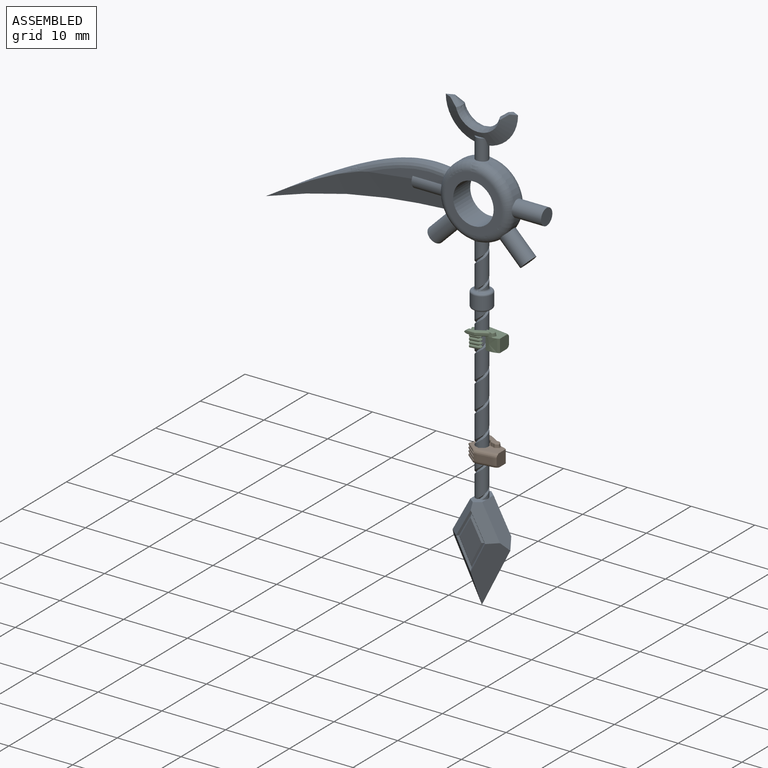
[diagram: assembled view]
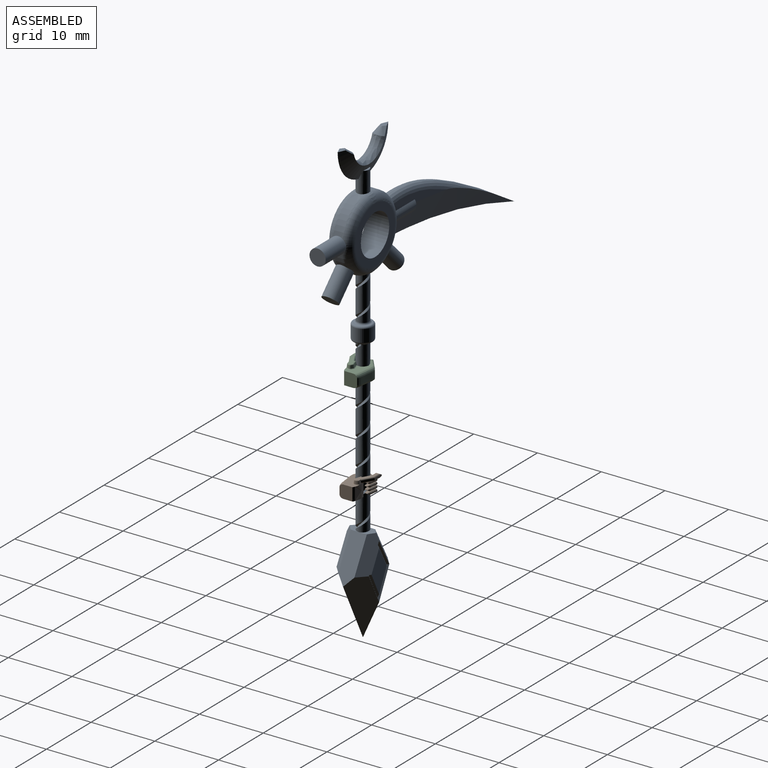
[diagram: assembled view, second angle]
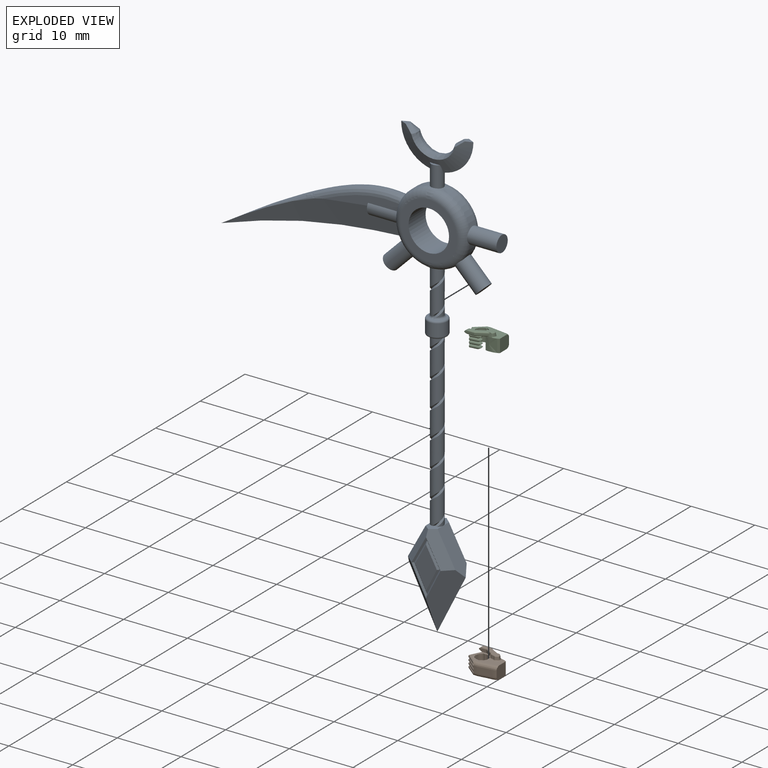
[diagram: exploded view]
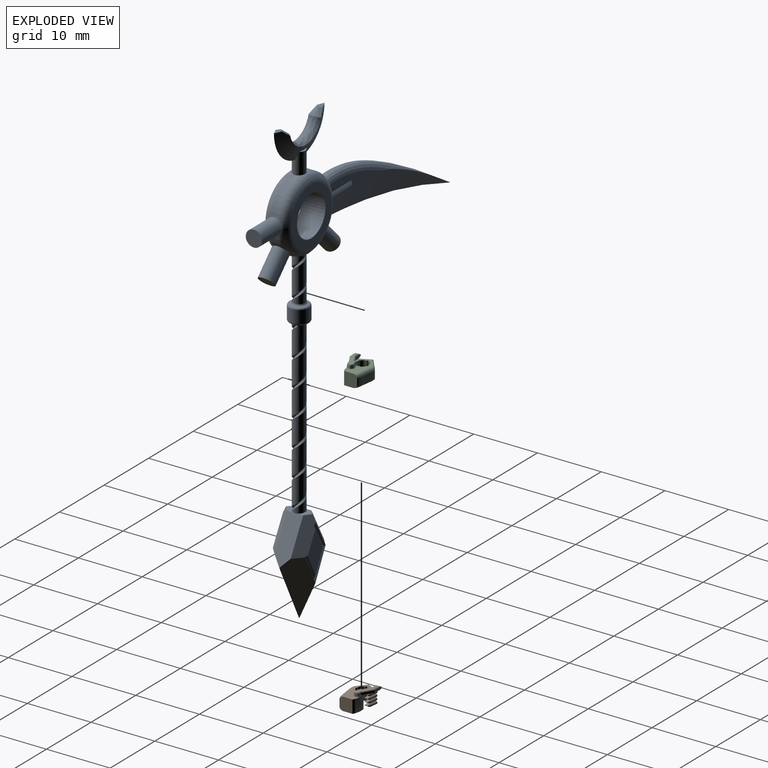
[diagram: exploded view, second angle]
ASSEMBLY  parts=3 mates=2
PART A: 95 faces, bbox 47.1x71.3x5.4 mm
  f0: cylinder r=0.95mm len=6.92mm, axis (0,1,0), area 36.3mm2, adj f1,f2,f3,f6,f20,f23,f67,f69
  f1: bspline ~8.16x2.41mm, area 3.9mm2, adj f0,f2,f3,f37,f38,f67,f68,f69
  f2: bspline ~8.15x2.45mm, area 3.9mm2, adj f0,f1,f20,f37,f38,f67
  f3: cylinder r=5.71mm len=2.59mm, axis (0,0,-1), area 3.2mm2, adj f0,f1,f12,f13,f35,f37
  f4: cylinder r=5.71mm len=2.11mm, axis (0,0,-1), area 0.8mm2, adj f13,f35,f40,f44
  f5: cylinder r=3.17mm len=6.35mm, axis (0,0,-1), area 76mm2, adj f16,f17
  f6: cylinder r=5.71mm len=2.59mm, axis (0,0,-1), area 3.2mm2, adj f0,f8,f9,f33
  f7: cylinder r=5.71mm len=2.11mm, axis (0,0,-1), area 2.6mm2, adj f8,f9,f25,f33
  f8: torus R=4.45mm, axis (0,0,1), area 28.3mm2, adj f6,f7,f15,f17,f20,f21,f25,f33
  f9: torus R=4.45mm, axis (0,0,1), area 28.3mm2, adj f6,f7,f15,f16,f22,f23,f25,f33
  f10: cylinder r=5.71mm len=4.27mm, axis (0,0,-1), area 6.4mm2, adj f12,f13,f19,f41,f42
  f11: cylinder r=5.71mm len=2.11mm, axis (0,0,-1), area 0.8mm2, adj f12,f35,f39,f45
  f12: torus R=4.45mm, axis (0,0,1), area 27.6mm2, adj f3,f10,f11,f17,f20,f21,f32,f35
  f13: torus R=4.45mm, axis (0,0,1), area 27.7mm2, adj f3,f4,f10,f16,f22,f23,f31,f35
  f14: plane 1.74x0.58mm, normal (0,1,0), area 0.4mm2, adj f19,f26
  f15: cylinder r=5.71mm len=4.87mm, axis (0,0,-1), area 8.6mm2, adj f8,f9,f19,f25
  f16: plane 8.97x8.89mm, normal (0,0,1), area 30.4mm2, adj f5,f9,f13,f22,f23
  f17: plane 8.97x8.89mm, normal (0,0,-1), area 30.4mm2, adj f5,f8,f12,f20,f21
  f18: plane 1.66x0.52mm, normal (0,1,0), area 0.4mm2, adj f19,f27
  f19: cylinder r=0.95mm len=3.3mm, axis (0,1,0), area 18.3mm2, adj f10,f14,f15,f18,f21,f22,f26,f27
  f20: bspline ~1.53x1.35mm, area 2.3mm2, adj f0,f2,f8,f12,f17,f37
  f21: bspline ~1.42x1.3mm, area 2.3mm2, adj f8,f12,f17,f19
  f22: bspline ~1.42x1.3mm, area 2.3mm2, adj f9,f13,f16,f19
  f23: bspline ~1.42x1.3mm, area 2.3mm2, adj f0,f9,f13,f16
  f24: plane 2.54x2.54mm, normal (1,0,0), area 5.1mm2, adj f25
  f25: cylinder r=1.27mm len=4.58mm, axis (-1,0,0), area 36.3mm2, adj f7,f8,f9,f15,f24
  f26: bspline ~11.33x5.46mm, area 29.7mm2, adj f14,f19,f27,f28,f29,f30,f93,f94
  f27: bspline ~11.33x5.46mm, area 30.2mm2, adj f18,f19,f26,f28,f29,f30,f93,f94
  f28: plane 1.88x1.27mm, normal (0.01,1,0), area 0.8mm2, adj f26,f27,f94
  f29: plane 1.84x1.25mm, normal (0.01,1,0), area 0.7mm2, adj f26,f27,f93
  f30: bspline ~7.14x7.14mm, area 18.5mm2, adj f26,f27,f93,f94
  f31: plane 12.18x2.8mm, normal (0,0,1), area 11.7mm2, adj f13,f40,f41,f43,f44
  f32: plane 12.19x2.81mm, normal (0,0,-1), area 11.7mm2, adj f12,f39,f42,f45,f46
  f33: cylinder r=1.27mm len=5.04mm, axis (-0.71,0.71,0), area 36.3mm2, adj f6,f7,f8,f9,f34
  f34: plane 2.54x1.8mm, normal (0.71,-0.71,0), area 5.1mm2, adj f33
  f35: cylinder r=1.27mm len=5.06mm, axis (0.71,0.71,0), area 36.2mm2, adj f3,f4,f11,f12,f13,f36
  f36: plane 2.54x1.8mm, normal (-0.71,-0.71,0), area 5.1mm2, adj f35
  f37: bspline ~2.13x1.59mm, area 0.5mm2, adj f1,f2,f3,f12,f20,f38
  f38: plane 0.71x0.37mm, normal (0,0,-1), area 0.1mm2, adj f1,f2,f37
  f39: bspline ~33.29x10.15mm, area 73.1mm2, adj f11,f32,f40,f42,f45,f46
  f40: bspline ~33.29x10.15mm, area 73mm2, adj f4,f31,f39,f41,f43,f44
  f41: bspline ~30.28x13.43mm, area 35.4mm2, adj f10,f13,f31,f40,f42
  f42: bspline ~30.28x13.43mm, area 35.4mm2, adj f10,f12,f32,f39,f41
  f43: plane 1.87x0.64mm, normal (-1,0,0), area 0.5mm2, adj f31,f40,f44
  f44: cylinder r=1.27mm len=4.58mm, axis (1,0,0), area 10.1mm2, adj f4,f13,f31,f40,f43
  f45: cylinder r=1.27mm len=4.58mm, axis (1,0,0), area 10.1mm2, adj f11,f12,f32,f39,f46
  f46: plane 1.87x0.64mm, normal (-1,0,0), area 0.5mm2, adj f32,f39,f45
  f47: plane 2.57x2.57mm, normal (0,1,0), area 0.2mm2, adj f67,f68,f69,f74
  f48: plane 2.57x2.57mm, normal (0,-1,0), area 0.2mm2, adj f70,f71,f72,f73
  f49: cylinder r=1.59mm len=3.18mm, axis (0,-1,0), area 19.3mm2, adj f73,f74
  f50: plane 10.2x4.46mm, normal (-0.63,-0.32,0.71), area 28.3mm2, adj f51,f53,f57,f58,f78
  f51: plane 10.2x4.46mm, normal (-0.63,-0.32,-0.71), area 28.3mm2, adj f50,f52,f55,f58,f84
  f52: plane 5.16x3.72mm, normal (-0.62,0.34,-0.71), area 10.1mm2, adj f51,f54,f58,f59,f85
  f53: plane 10.2x4.46mm, normal (0.63,-0.32,0.71), area 28.3mm2, adj f50,f55,f56,f61,f79
  f54: plane 5.16x3.72mm, normal (0.62,0.34,-0.71), area 10.1mm2, adj f52,f55,f60,f61,f86
  f55: plane 10.2x4.46mm, normal (0.63,-0.32,-0.71), area 28.3mm2, adj f51,f53,f54,f61,f91
  f56: plane 5.16x3.72mm, normal (0.62,0.34,0.71), area 10.1mm2, adj f53,f57,f61,f62,f80
  f57: plane 5.16x3.72mm, normal (-0.62,0.34,0.71), area 10.1mm2, adj f50,f56,f58,f63,f81
  f58: plane 6.48x3.56mm, normal (-0.88,0.48,0), area 16.7mm2, adj f50,f51,f52,f57,f59,f63,f66
  f59: plane 1.93x0.96mm, normal (-0.06,1,0), area 0.9mm2, adj f52,f58,f60,f66
  f60: plane 1.93x0.96mm, normal (0.06,1,0), area 0.9mm2, adj f54,f59,f61,f66
  f61: plane 6.48x3.56mm, normal (0.88,0.48,0), area 16.7mm2, adj f53,f54,f55,f56,f60,f62,f66
  f62: plane 1.94x0.96mm, normal (0.06,1,0), area 0.9mm2, adj f56,f61,f63,f64,f65,f66
  f63: plane 1.93x0.95mm, normal (-0.06,1,0), area 0.9mm2, adj f57,f58,f62,f64,f66
  f64: bspline ~28x2.45mm, area 13.4mm2, adj f62,f63,f65,f66,f70,f71,f72
  f65: bspline ~28.02x2.41mm, area 13.8mm2, adj f62,f64,f66,f71
  f66: cylinder r=0.95mm len=26.59mm, axis (0,1,0), area 134.4mm2, adj f58,f59,f60,f61,f62,f63,f64,f65
  f67: bspline ~0.85x0.81mm, area 0.2mm2, adj f0,f1,f2,f47,f68,f69
  f68: bspline ~0.61x0.46mm, area 0.1mm2, adj f1,f47,f67,f69
  f69: torus R=1.26mm, axis (0,-1,0), area 3mm2, adj f0,f1,f47,f67,f68
  f70: bspline ~0.57x0.49mm, area 0.1mm2, adj f48,f64,f71,f72
  f71: bspline ~0.85x0.75mm, area 0.2mm2, adj f48,f64,f65,f66,f70,f72
  f72: torus R=1.26mm, axis (0,-1,0), area 3mm2, adj f48,f64,f66,f70,f71
  f73: torus R=1.28mm, axis (0,-1,0), area 4.4mm2, adj f48,f49
  f74: torus R=1.28mm, axis (0,-1,0), area 4.4mm2, adj f47,f49
  f75: plane 3.66x2mm, normal (-0.62,0.34,0.71), area 1.4mm2, adj f76,f81,f82,f83
  f76: plane 3.66x2mm, normal (0.62,0.34,0.71), area 1.4mm2, adj f75,f77,f80,f83
  f77: plane 3.96x2mm, normal (0.63,-0.32,0.71), area 1.5mm2, adj f76,f79,f82,f83
  f78: plane 4.53x2.28mm, normal (0.63,0.32,0.71), area 1.7mm2, adj f50,f79,f81,f82
  f79: plane 4.53x2.28mm, normal (-0.63,0.32,0.71), area 1.7mm2, adj f53,f77,f78,f80
  f80: plane 4.18x2.28mm, normal (-0.62,-0.34,0.71), area 1.6mm2, adj f56,f76,f79,f81
  f81: plane 4.18x2.28mm, normal (0.62,-0.34,0.71), area 1.6mm2, adj f57,f75,f78,f80
  f82: plane 3.96x2mm, normal (-0.63,-0.32,0.71), area 1.5mm2, adj f75,f77,f78,f83
  f83: plane 6.52x3.42mm, normal (0,0,1), area 11.1mm2, adj f75,f76,f77,f82
  f84: plane 4.53x2.28mm, normal (0.63,0.32,-0.71), area 1.7mm2, adj f51,f85,f90,f91
  f85: plane 4.18x2.28mm, normal (0.62,-0.34,-0.71), area 1.6mm2, adj f52,f84,f86,f89
  f86: plane 4.18x2.28mm, normal (-0.62,-0.34,-0.71), area 1.6mm2, adj f54,f85,f88,f91
  f87: plane 3.96x2mm, normal (0.63,-0.32,-0.71), area 1.5mm2, adj f88,f90,f91,f92
  f88: plane 3.66x2mm, normal (0.62,0.34,-0.71), area 1.4mm2, adj f86,f87,f89,f92
  f89: plane 3.66x2mm, normal (-0.62,0.34,-0.71), area 1.4mm2, adj f85,f88,f90,f92
  f90: plane 3.96x2mm, normal (-0.63,-0.32,-0.71), area 1.5mm2, adj f84,f87,f89,f92
  f91: plane 4.53x2.28mm, normal (-0.63,0.32,-0.71), area 1.7mm2, adj f55,f84,f86,f87
  f92: plane 6.52x3.42mm, normal (0,0,-1), area 11.1mm2, adj f87,f88,f89,f90
  f93: bspline ~2.68x1.63mm, area 2.6mm2, adj f26,f27,f29,f30
  f94: bspline ~2.79x1.69mm, area 2.8mm2, adj f26,f27,f28,f30
PART B: 79 faces, bbox 4.3x5.7x2.9 mm
  f0: plane 4.84x2.76mm, normal (0,0,-1), area 6.7mm2, adj f5,f6,f7,f8,f9,f10,f12,f16
  f1: plane 0.22x0.13mm, normal (-0.98,0.2,0), area 0mm2, adj f10,f19,f23,f76
  f2: plane 0.22x0.13mm, normal (-0.98,0.2,0), area 0mm2, adj f25,f29,f30,f76
  f3: plane 0.22x0.13mm, normal (-0.98,0.2,0), area 0mm2, adj f32,f36,f37,f76
  f4: plane 0.22x0.13mm, normal (-0.98,0.2,0), area 0mm2, adj f39,f43,f44,f76
  f5: plane 2.03x0.23mm, normal (-0.98,0.2,0), area 0.5mm2, adj f0,f7,f11,f76
  f6: plane 2.03x0.21mm, normal (-0.51,-0.86,0), area 0.5mm2, adj f0,f9,f11,f78
  f7: plane 2.03x0.2mm, normal (-0.51,-0.86,0), area 0.5mm2, adj f0,f5,f11,f78
  f8: plane 2.03x0.12mm, normal (0.8,-0.6,0), area 0.3mm2, adj f0,f11,f12,f77
  f9: plane 2.03x0.14mm, normal (0.8,-0.6,0), area 0.4mm2, adj f0,f6,f11,f77
  f10: plane 0.47x0.41mm, normal (-0.04,-0.5,-0.87), area 0.2mm2, adj f0,f1,f19,f24,f76
  f11: plane 4.94x2.78mm, normal (0,0,1), area 5.2mm2, adj f5,f6,f7,f8,f9,f12,f16,f17
  f12: extruded ~2.03x2.02mm, area 5mm2, adj f0,f8,f11,f17,f48,f69
  f13: extruded ~0.41x0.37mm, area 0.1mm2, adj f18,f35,f42,f46
  f14: extruded ~0.51x0.37mm, area 0.1mm2, adj f18,f28,f35
  f15: extruded ~0.41x0.37mm, area 0.1mm2, adj f18,f22,f28,f47
  f16: plane 2.18x2.18mm, normal (0,-1,0), area 4mm2, adj f0,f11,f17,f18,f46,f47
  f17: extruded ~2.05x2.01mm, area 4.2mm2, adj f0,f11,f12,f16,f48,f70,f72
  f18: extruded ~3.28x1.02mm, area 3.4mm2, adj f13,f14,f15,f16,f46,f47
  f19: plane 0.48x0.07mm, normal (-0.07,-1,0), area 0mm2, adj f1,f10,f23,f24
  f20: cylinder r=0.25mm len=1.12mm, axis (0.14,0.99,0), area 0.9mm2, adj f0,f21,f24,f26
  f21: cylinder r=0.25mm len=1.76mm, axis (-0.9,0.44,0), area 1.5mm2, adj f0,f20,f22,f27
  f22: cylinder r=0.25mm len=2.02mm, axis (-0.64,-0.77,0), area 1.7mm2, adj f0,f15,f21,f28,f47
  f23: plane 0.47x0.41mm, normal (-0.04,-0.5,0.87), area 0.2mm2, adj f1,f19,f24,f29,f76
  f24: bspline ~0.52x0.38mm, area 0.2mm2, adj f10,f19,f20,f23
  f25: plane 0.48x0.07mm, normal (-0.07,-1,0), area 0mm2, adj f2,f29,f30,f31
  f26: cylinder r=0.25mm len=1.12mm, axis (0.14,0.99,0), area 0.9mm2, adj f20,f27,f31,f33
  f27: cylinder r=0.25mm len=1.76mm, axis (-0.9,0.44,0), area 1.5mm2, adj f21,f26,f28,f34
  f28: cylinder r=0.25mm len=1.88mm, axis (-0.64,-0.77,0), area 1.7mm2, adj f14,f15,f22,f27,f35
  f29: plane 0.47x0.41mm, normal (-0.04,-0.5,-0.87), area 0.2mm2, adj f2,f23,f25,f31,f76
  f30: plane 0.47x0.41mm, normal (-0.04,-0.5,0.87), area 0.2mm2, adj f2,f25,f31,f36,f76
  f31: bspline ~0.52x0.38mm, area 0.2mm2, adj f25,f26,f29,f30
  f32: plane 0.48x0.07mm, normal (-0.07,-1,0), area 0mm2, adj f3,f36,f37,f38
  f33: cylinder r=0.25mm len=1.12mm, axis (0.14,0.99,0), area 0.9mm2, adj f26,f34,f38,f40
  f34: cylinder r=0.25mm len=1.76mm, axis (-0.9,0.44,0), area 1.5mm2, adj f27,f33,f35,f41
  f35: cylinder r=0.25mm len=1.88mm, axis (-0.64,-0.77,0), area 1.7mm2, adj f13,f14,f28,f34,f42
  f36: plane 0.47x0.41mm, normal (-0.04,-0.5,-0.87), area 0.2mm2, adj f3,f30,f32,f38,f76
  f37: plane 0.47x0.41mm, normal (-0.04,-0.5,0.87), area 0.2mm2, adj f3,f32,f38,f43,f76
  f38: bspline ~0.52x0.38mm, area 0.2mm2, adj f32,f33,f36,f37
  f39: plane 0.48x0.07mm, normal (-0.07,-1,0), area 0mm2, adj f4,f43,f44,f45
  f40: cylinder r=0.25mm len=1.3mm, axis (-0.14,-0.99,0), area 1mm2, adj f11,f33,f41,f45,f48
  f41: cylinder r=0.25mm len=2.11mm, axis (0.9,-0.44,0), area 1.7mm2, adj f11,f34,f40,f42,f48
  f42: cylinder r=0.25mm len=2.02mm, axis (0.64,0.77,0), area 1.7mm2, adj f11,f13,f35,f41,f46
  f43: plane 0.47x0.41mm, normal (-0.04,-0.5,-0.87), area 0.2mm2, adj f4,f37,f39,f45,f76
  f44: plane 0.48x0.41mm, normal (-0.04,-0.5,0.87), area 0.2mm2, adj f4,f11,f39,f45,f48,f76
  f45: bspline ~0.52x0.38mm, area 0.2mm2, adj f39,f40,f43,f44
  f46: bspline ~4.29x1.18mm, area 2.8mm2, adj f11,f13,f16,f18,f42
  f47: bspline ~4.29x1.18mm, area 2.8mm2, adj f0,f15,f16,f18,f22
  f48: plane 2.43x1.13mm, normal (0,0,-1), area 1mm2, adj f12,f17,f40,f41,f44,f54,f56,f61
  f49: extruded ~0.25x0.05mm, area 0mm2, adj f51,f54,f57,f69
  f50: plane 0.25x0.17mm, normal (0.87,-0.5,0), area 0mm2, adj f52,f55,f58,f70
  f51: bspline ~1.04x0.65mm, area 0mm2, adj f49,f62,f66,f69
  f52: cylinder r=0.19mm len=0.24mm, axis (-0.5,-0.87,0), area 0mm2, adj f50,f53,f70
  f53: cylinder r=0.19mm len=1.64mm, axis (-0.5,-0.87,0), area 0.5mm2, adj f52,f58,f62,f67,f70
  f54: bspline ~3.19x1.76mm, area 0.3mm2, adj f11,f48,f49,f57,f61,f69
  f55: cylinder r=0.19mm len=0.14mm, axis (0.5,0.87,0), area 0mm2, adj f50,f56,f70
  f56: cylinder r=0.19mm len=1.64mm, axis (0.5,0.87,0), area 0.5mm2, adj f48,f55,f58,f68,f70
  f57: plane 1.26x0.73mm, normal (-0.87,0.5,0), area 0.5mm2, adj f49,f54,f61,f66
  f58: plane 1.54x0.89mm, normal (0.87,-0.5,0), area 0.5mm2, adj f50,f53,f56,f59
  f59: plane 1.54x0.25mm, normal (1,-0.03,0), area 0.4mm2, adj f58,f60,f63,f64,f67,f68
  f60: plane 0.7x0.13mm, normal (0,1,0), area 0.1mm2, adj f59,f61,f63,f64
  f61: plane 1.42x0.45mm, normal (-1,0,0), area 0.5mm2, adj f11,f48,f54,f57,f60,f63,f64,f65
  f62: plane 3.34x1.7mm, normal (0,0,1), area 1.5mm2, adj f51,f53,f64,f65,f66,f67,f69,f70
  f63: plane 0.84x0.58mm, normal (0,0.5,-0.87), area 0.3mm2, adj f48,f59,f60,f61,f68
  f64: plane 0.84x0.58mm, normal (0,0.5,0.87), area 0.3mm2, adj f59,f60,f61,f62,f65,f67
  f65: cylinder r=0.19mm len=1.1mm, axis (0,1,0), area 0.3mm2, adj f61,f62,f64,f66
  f66: cylinder r=0.19mm len=1.4mm, axis (0.5,0.87,0), area 0.4mm2, adj f51,f57,f62,f65
  f67: cylinder r=0.19mm len=1.44mm, axis (-0.03,-1,0), area 0.4mm2, adj f53,f59,f62,f64
  f68: cylinder r=0.19mm len=1.44mm, axis (0.03,1,0), area 0.4mm2, adj f48,f56,f59,f63
  f69: bspline ~0.7x0.69mm, area 0.2mm2, adj f12,f49,f51,f54,f62,f71,f72,f75
  f70: bspline ~0.95x0.69mm, area 0.3mm2, adj f17,f50,f52,f53,f55,f56,f62,f71
  f71: bspline ~1.52x1.01mm, area 0.9mm2, adj f69,f70,f72,f73,f74,f75
  f72: bspline ~1.93x1.43mm, area 0.4mm2, adj f11,f17,f69,f70,f71
  f73: bspline ~1.05x0.52mm, area 0.2mm2, adj f62,f70,f71,f74
  f74: bspline ~0.13x0.11mm, area 0mm2, adj f71,f73,f75
  f75: bspline ~1.01x0.41mm, area 0.2mm2, adj f62,f69,f71,f74
  f76: cylinder r=0.95mm len=2.03mm, axis (0,0,-1), area 1.4mm2, adj f0,f1,f2,f3,f4,f5,f10,f11
  f77: cylinder r=0.95mm len=2.03mm, axis (0,0,-1), area 2.7mm2, adj f0,f8,f9,f11
  f78: cylinder r=0.95mm len=2.03mm, axis (0,0,-1), area 1.7mm2, adj f0,f6,f7,f11
PART C: 79 faces, bbox 4.3x5.7x2.9 mm
  f0: plane 4.84x2.76mm, normal (0,0,-1), area 6.7mm2, adj f5,f6,f7,f8,f9,f10,f12,f16
  f1: plane 0.22x0.13mm, normal (0.98,0.2,0), area 0mm2, adj f10,f19,f23,f76
  f2: plane 0.22x0.13mm, normal (0.98,0.2,0), area 0mm2, adj f25,f29,f30,f76
  f3: plane 0.22x0.13mm, normal (0.98,0.2,0), area 0mm2, adj f32,f36,f37,f76
  f4: plane 0.22x0.13mm, normal (0.98,0.2,0), area 0mm2, adj f39,f43,f44,f76
  f5: plane 2.03x0.23mm, normal (0.98,0.2,0), area 0.5mm2, adj f0,f7,f11,f76
  f6: plane 2.03x0.21mm, normal (0.51,-0.86,0), area 0.5mm2, adj f0,f9,f11,f78
  f7: plane 2.03x0.2mm, normal (0.51,-0.86,0), area 0.5mm2, adj f0,f5,f11,f78
  f8: plane 2.03x0.12mm, normal (-0.8,-0.6,0), area 0.3mm2, adj f0,f11,f12,f77
  f9: plane 2.03x0.14mm, normal (-0.8,-0.6,0), area 0.4mm2, adj f0,f6,f11,f77
  f10: plane 0.47x0.41mm, normal (0.04,-0.5,-0.87), area 0.2mm2, adj f0,f1,f19,f24,f76
  f11: plane 4.94x2.78mm, normal (0,0,1), area 5.2mm2, adj f5,f6,f7,f8,f9,f12,f16,f17
  f12: extruded ~2.03x2.02mm, area 5mm2, adj f0,f8,f11,f17,f48,f69
  f13: extruded ~0.41x0.37mm, area 0.1mm2, adj f18,f35,f42,f46
  f14: extruded ~0.51x0.37mm, area 0.1mm2, adj f18,f28,f35
  f15: extruded ~0.41x0.37mm, area 0.1mm2, adj f18,f22,f28,f47
  f16: plane 2.18x2.18mm, normal (0,-1,0), area 4mm2, adj f0,f11,f17,f18,f46,f47
  f17: extruded ~2.05x2.01mm, area 4.2mm2, adj f0,f11,f12,f16,f48,f70,f72
  f18: extruded ~3.28x1.02mm, area 3.4mm2, adj f13,f14,f15,f16,f46,f47
  f19: plane 0.48x0.07mm, normal (0.07,-1,0), area 0mm2, adj f1,f10,f23,f24
  f20: cylinder r=0.25mm len=1.12mm, axis (-0.14,0.99,0), area 0.9mm2, adj f0,f21,f24,f26
  f21: cylinder r=0.25mm len=1.76mm, axis (0.9,0.44,0), area 1.5mm2, adj f0,f20,f22,f27
  f22: cylinder r=0.25mm len=2.02mm, axis (0.64,-0.77,0), area 1.7mm2, adj f0,f15,f21,f28,f47
  f23: plane 0.47x0.41mm, normal (0.04,-0.5,0.87), area 0.2mm2, adj f1,f19,f24,f29,f76
  f24: bspline ~0.52x0.38mm, area 0.2mm2, adj f10,f19,f20,f23
  f25: plane 0.48x0.07mm, normal (0.07,-1,0), area 0mm2, adj f2,f29,f30,f31
  f26: cylinder r=0.25mm len=1.12mm, axis (-0.14,0.99,0), area 0.9mm2, adj f20,f27,f31,f33
  f27: cylinder r=0.25mm len=1.76mm, axis (0.9,0.44,0), area 1.5mm2, adj f21,f26,f28,f34
  f28: cylinder r=0.25mm len=1.88mm, axis (0.64,-0.77,0), area 1.7mm2, adj f14,f15,f22,f27,f35
  f29: plane 0.47x0.41mm, normal (0.04,-0.5,-0.87), area 0.2mm2, adj f2,f23,f25,f31,f76
  f30: plane 0.47x0.41mm, normal (0.04,-0.5,0.87), area 0.2mm2, adj f2,f25,f31,f36,f76
  f31: bspline ~0.52x0.38mm, area 0.2mm2, adj f25,f26,f29,f30
  f32: plane 0.48x0.07mm, normal (0.07,-1,0), area 0mm2, adj f3,f36,f37,f38
  f33: cylinder r=0.25mm len=1.12mm, axis (-0.14,0.99,0), area 0.9mm2, adj f26,f34,f38,f40
  f34: cylinder r=0.25mm len=1.76mm, axis (0.9,0.44,0), area 1.5mm2, adj f27,f33,f35,f41
  f35: cylinder r=0.25mm len=1.88mm, axis (0.64,-0.77,0), area 1.7mm2, adj f13,f14,f28,f34,f42
  f36: plane 0.47x0.41mm, normal (0.04,-0.5,-0.87), area 0.2mm2, adj f3,f30,f32,f38,f76
  f37: plane 0.47x0.41mm, normal (0.04,-0.5,0.87), area 0.2mm2, adj f3,f32,f38,f43,f76
  f38: bspline ~0.52x0.38mm, area 0.2mm2, adj f32,f33,f36,f37
  f39: plane 0.48x0.07mm, normal (0.07,-1,0), area 0mm2, adj f4,f43,f44,f45
  f40: cylinder r=0.25mm len=1.3mm, axis (0.14,-0.99,0), area 1mm2, adj f11,f33,f41,f45,f48
  f41: cylinder r=0.25mm len=2.11mm, axis (-0.9,-0.44,0), area 1.7mm2, adj f11,f34,f40,f42,f48
  f42: cylinder r=0.25mm len=2.02mm, axis (-0.64,0.77,0), area 1.7mm2, adj f11,f13,f35,f41,f46
  f43: plane 0.47x0.41mm, normal (0.04,-0.5,-0.87), area 0.2mm2, adj f4,f37,f39,f45,f76
  f44: plane 0.48x0.41mm, normal (0.04,-0.5,0.87), area 0.2mm2, adj f4,f11,f39,f45,f48,f76
  f45: bspline ~0.52x0.38mm, area 0.2mm2, adj f39,f40,f43,f44
  f46: bspline ~4.29x1.18mm, area 2.8mm2, adj f11,f13,f16,f18,f42
  f47: bspline ~4.29x1.18mm, area 2.8mm2, adj f0,f15,f16,f18,f22
  f48: plane 2.43x1.13mm, normal (0,0,-1), area 1mm2, adj f12,f17,f40,f41,f44,f54,f56,f61
  f49: extruded ~0.25x0.05mm, area 0mm2, adj f51,f54,f57,f69
  f50: plane 0.25x0.17mm, normal (-0.87,-0.5,0), area 0mm2, adj f52,f55,f58,f70
  f51: bspline ~1.06x0.66mm, area 0mm2, adj f49,f62,f66,f69
  f52: cylinder r=0.19mm len=0.24mm, axis (0.5,-0.87,0), area 0mm2, adj f50,f53,f70
  f53: cylinder r=0.19mm len=1.64mm, axis (0.5,-0.87,0), area 0.5mm2, adj f52,f58,f62,f67,f70
  f54: bspline ~3.19x1.76mm, area 0.3mm2, adj f11,f48,f49,f57,f61,f69
  f55: cylinder r=0.19mm len=0.14mm, axis (-0.5,0.87,0), area 0mm2, adj f50,f56,f70
  f56: cylinder r=0.19mm len=1.64mm, axis (-0.5,0.87,0), area 0.5mm2, adj f48,f55,f58,f68,f70
  f57: plane 1.26x0.73mm, normal (0.87,0.5,0), area 0.5mm2, adj f49,f54,f61,f66
  f58: plane 1.54x0.89mm, normal (-0.87,-0.5,0), area 0.5mm2, adj f50,f53,f56,f59
  f59: plane 1.54x0.25mm, normal (-1,-0.03,0), area 0.4mm2, adj f58,f60,f63,f64,f67,f68
  f60: plane 0.7x0.13mm, normal (0,1,0), area 0.1mm2, adj f59,f61,f63,f64
  f61: plane 1.42x0.45mm, normal (1,0,0), area 0.5mm2, adj f11,f48,f54,f57,f60,f63,f64,f65
  f62: plane 3.34x1.7mm, normal (0,0,1), area 1.5mm2, adj f51,f53,f64,f65,f66,f67,f69,f70
  f63: plane 0.84x0.58mm, normal (0,0.5,-0.87), area 0.3mm2, adj f48,f59,f60,f61,f68
  f64: plane 0.84x0.58mm, normal (0,0.5,0.87), area 0.3mm2, adj f59,f60,f61,f62,f65,f67
  f65: cylinder r=0.19mm len=1.1mm, axis (0,1,0), area 0.3mm2, adj f61,f62,f64,f66
  f66: cylinder r=0.19mm len=1.4mm, axis (-0.5,0.87,0), area 0.4mm2, adj f51,f57,f62,f65
  f67: cylinder r=0.19mm len=1.44mm, axis (0.03,-1,0), area 0.4mm2, adj f53,f59,f62,f64
  f68: cylinder r=0.19mm len=1.44mm, axis (-0.03,1,0), area 0.4mm2, adj f48,f56,f59,f63
  f69: bspline ~0.7x0.69mm, area 0.2mm2, adj f12,f49,f51,f54,f62,f71,f72,f75
  f70: bspline ~0.95x0.69mm, area 0.3mm2, adj f17,f50,f52,f53,f55,f56,f62,f71
  f71: bspline ~1.52x1.01mm, area 0.9mm2, adj f69,f70,f72,f73,f74,f75
  f72: bspline ~1.93x1.43mm, area 0.4mm2, adj f11,f17,f69,f70,f71
  f73: bspline ~1.05x0.52mm, area 0.2mm2, adj f62,f70,f71,f74
  f74: bspline ~0.13x0.11mm, area 0mm2, adj f71,f73,f75
  f75: bspline ~1.01x0.41mm, area 0.2mm2, adj f62,f69,f71,f74
  f76: cylinder r=0.95mm len=2.03mm, axis (0,0,-1), area 1.4mm2, adj f0,f1,f2,f3,f4,f5,f10,f11
  f77: cylinder r=0.95mm len=2.03mm, axis (0,0,-1), area 2.7mm2, adj f0,f8,f9,f11
  f78: cylinder r=0.95mm len=2.03mm, axis (0,0,-1), area 1.7mm2, adj f0,f6,f7,f11
PLACE A rot(axis=(1,0,0),90deg) t=(-9.89,-21.28,26.33)mm fixed
PLACE B rot(axis=(0,0,1),90deg) t=(-9.89,-21.28,-19.57)mm
PLACE C rot(axis=(0,0,1),90deg) t=(-9.89,-21.28,-3.43)mm
MATE slider B.f76 <-> A.f0  axis (0,0,-1) through (-9.89,-21.28,-17.54)mm
MATE slider C.f76 <-> A.f0  axis (0,0,-1) through (-9.89,-21.28,-1.39)mm
